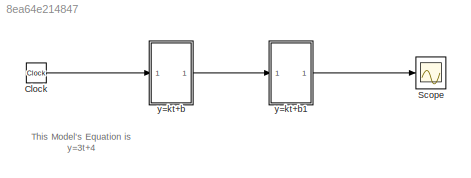
MODEL slx_8ea64e214847
KIND model
CONFIG AbsTol = auto
CONFIG EnableMultiTasking = off
CONFIG FixedStep = auto
CONFIG MaxStep = auto
CONFIG MinStep = auto
CONFIG RelTol = 1e-3
CONFIG SampleTimeConstraint = Unconstrained
CONFIG Solver = VariableStepAuto
CONFIG SolverName = VariableStepAuto
CONFIG StartTime = 0.0
CONFIG StopTime = 10.0
BLOCK [Clock] Clock
BLOCK [Scope] Scope
  Floating = off
  NumInputPorts = 1
  Ports = [1]
  ScopeSpecificationString = Simulink.scopes.TimeScopeBlockCfg('CurrentConfiguration', extmgr.ConfigurationSet(extmgr.Configuration('Core','General UI',true),extmgr.Configuration('Core','Source UI',true),extmgr.Configuration('Sources','WiredSimulink',true),extmgr.Configuration('Visuals','Time Domain',true,'SerializedDisplays',{struct('MinYLimReal','16.5','MaxYLimReal','391.5','YLabelReal','','MinYLimMag','16.5','MaxYLimMag','...<+1327ch>
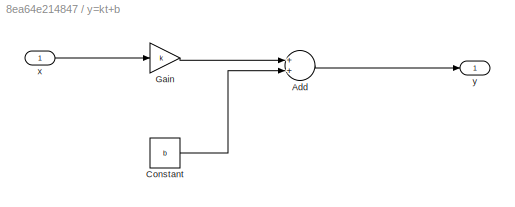
BLOCK [SubSystem] y=kt+b
  Ports = [1, 1]
  RequestExecContextInheritance = off
BLOCK [Sum] y=kt+b/Add
  InputSameDT = off
  OutDataTypeStr = Inherit: Inherit via internal rule
  Ports = [2, 1]
  SaturateOnIntegerOverflow = off
BLOCK [Constant] y=kt+b/Constant
  Value = b
BLOCK [Gain] y=kt+b/Gain
  Gain = k
  OutDataTypeStr = Inherit: Inherit via internal rule
  ParamDataTypeStr = Inherit: Inherit via internal rule
  SaturateOnIntegerOverflow = off
BLOCK [Inport] y=kt+b/x
  IconDisplay = Port number
BLOCK [Outport] y=kt+b/y
  IconDisplay = Port number
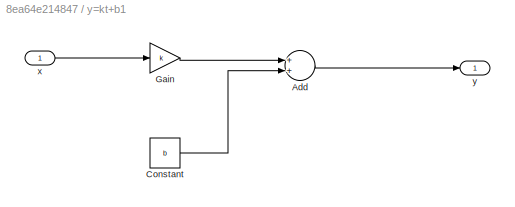
BLOCK [SubSystem] y=kt+b1
  Ports = [1, 1]
  RequestExecContextInheritance = off
BLOCK [Sum] y=kt+b1/Add
  InputSameDT = off
  OutDataTypeStr = Inherit: Inherit via internal rule
  Ports = [2, 1]
  SaturateOnIntegerOverflow = off
BLOCK [Constant] y=kt+b1/Constant
  Value = b
BLOCK [Gain] y=kt+b1/Gain
  Gain = k
  OutDataTypeStr = Inherit: Inherit via internal rule
  ParamDataTypeStr = Inherit: Inherit via internal rule
  SaturateOnIntegerOverflow = off
BLOCK [Inport] y=kt+b1/x
  IconDisplay = Port number
BLOCK [Outport] y=kt+b1/y
  IconDisplay = Port number
ANNOTATION (root): This Model's Equation is y=3t+4
LINE Clock:1 -> y=kt+b:1
LINE y=kt+b/Add:1 -> y=kt+b/y:1
LINE y=kt+b/Constant:1 -> y=kt+b/Add:2
LINE y=kt+b/Gain:1 -> y=kt+b/Add:1
LINE y=kt+b/x:1 -> y=kt+b/Gain:1
LINE y=kt+b1/Add:1 -> y=kt+b1/y:1
LINE y=kt+b1/Constant:1 -> y=kt+b1/Add:2
LINE y=kt+b1/Gain:1 -> y=kt+b1/Add:1
LINE y=kt+b1/x:1 -> y=kt+b1/Gain:1
LINE y=kt+b1:1 -> Scope:1
LINE y=kt+b:1 -> y=kt+b1:1
